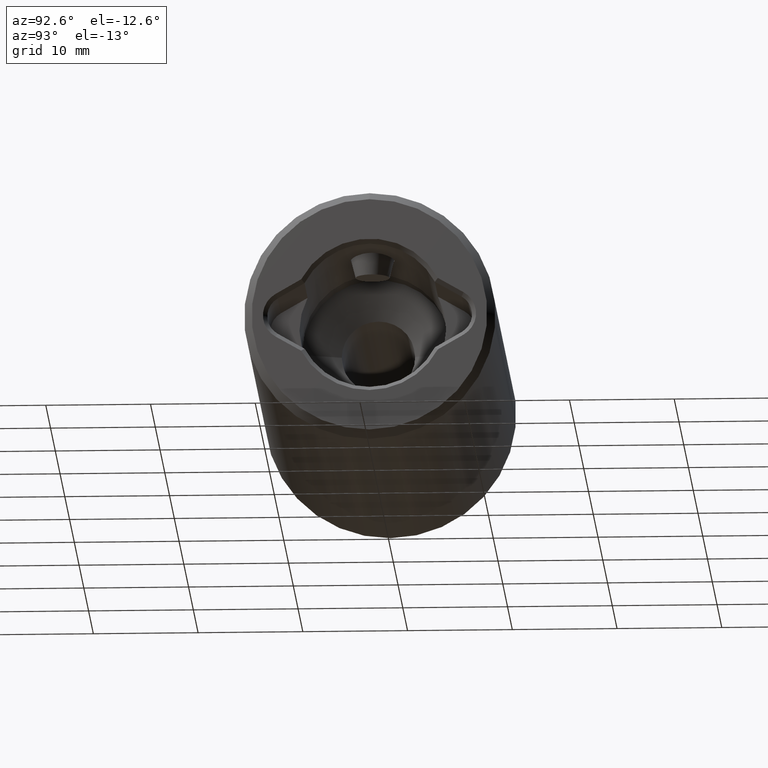
[diagram: clean part render]
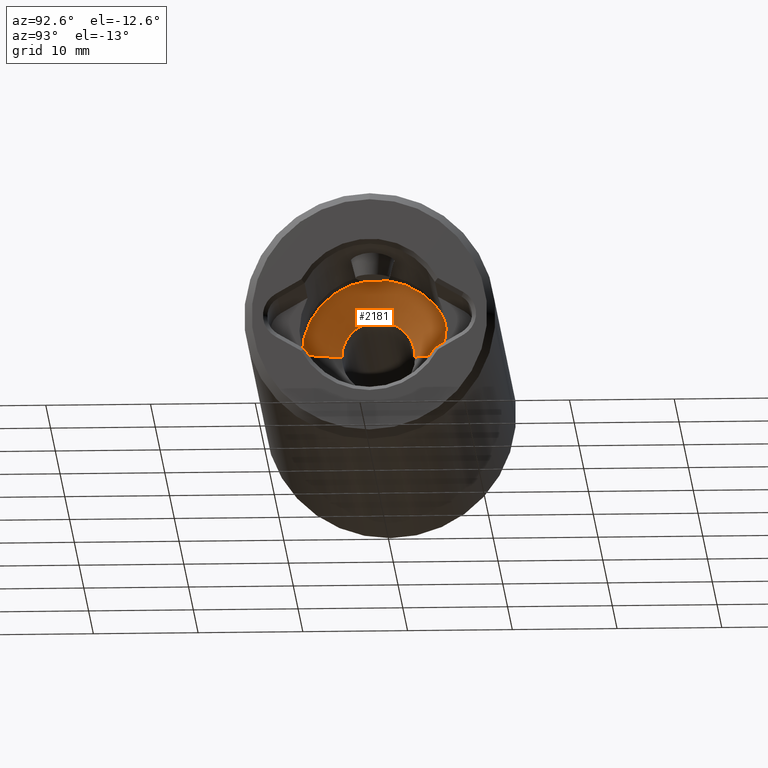
[diagram: same view with one face highlighted and labeled with its STEP entity id]
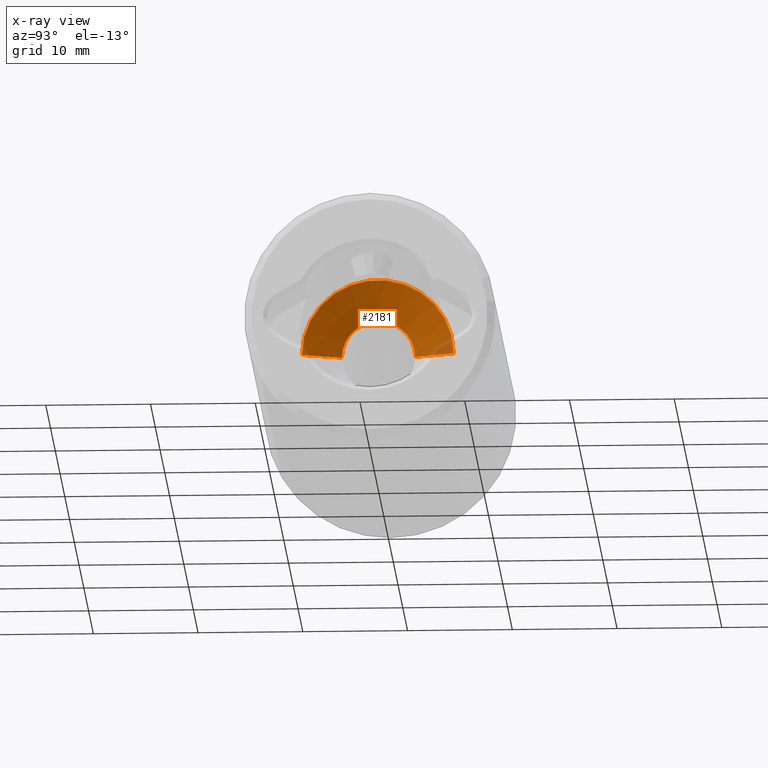
[diagram: x-ray of the same camera — body ghosted, the highlighted face saturated]
A machine part, auxiliary view. The second image highlights one B-rep face of the part: STEP entity #2181.
The next image is the same camera in x-ray: the body ghosted, the highlighted face saturated — about 5% of this face is hidden behind the body in this view.
In plain terms, the highlighted conical surface has half-angle 70 deg.
Its self-contained STEP definition (entity closure, byte-faithful):
#38 = EDGE_CURVE ( 'NONE', #66, #3526, #2952, .T. ) ;
#66 = VERTEX_POINT ( 'NONE', #887 ) ;
#77 = AXIS2_PLACEMENT_3D ( 'NONE', #3447, #1484, #3767 ) ;
#135 = CARTESIAN_POINT ( 'NONE',  ( 8.878689293818308100E-016, -7.250000000000000900, 17.50000000000000000 ) ) ;
#318 = DIRECTION ( 'NONE',  ( 0.0000000000000000000, 1.000000000000000000, 0.0000000000000000000 ) ) ;
#320 = EDGE_CURVE ( 'NONE', #1668, #455, #3971, .T. ) ;
#455 = VERTEX_POINT ( 'NONE', #135 ) ;
#466 = VERTEX_POINT ( 'NONE', #3518 ) ;
#562 = ORIENTED_EDGE ( 'NONE', *, *, #38, .F. ) ;
#575 = AXIS2_PLACEMENT_3D ( 'NONE', #1307, #1969, #318 ) ;
#812 = EDGE_LOOP ( 'NONE', ( #2291, #1006, #562, #1224, #3225 ) ) ;
#887 = CARTESIAN_POINT ( 'NONE',  ( 0.0000000000000000000, 3.499999999999997800, 18.86488837849823600 ) ) ;
#955 = DIRECTION ( 'NONE',  ( 0.0000000000000000000, 0.9396926207859104300, -0.3420201433256630500 ) ) ;
#1006 = ORIENTED_EDGE ( 'NONE', *, *, #4036, .F. ) ;
#1040 = CARTESIAN_POINT ( 'NONE',  ( 3.500000000000000000, 0.0000000000000000000, 18.86488837849823600 ) ) ;
#1057 = DIRECTION ( 'NONE',  ( 0.0000000000000000000, -4.148317104405457400E-017, -1.000000000000000000 ) ) ;
#1160 = DIRECTION ( 'NONE',  ( 1.150791560227852700E-016, -0.9396926207859104300, -0.3420201433256629400 ) ) ;
#1224 = ORIENTED_EDGE ( 'NONE', *, *, #3394, .T. ) ;
#1307 = CARTESIAN_POINT ( 'NONE',  ( 0.0000000000000000000, -2.136345753203781900E-015, 17.50000000000000000 ) ) ;
#1329 = AXIS2_PLACEMENT_3D ( 'NONE', #1914, #4199, #2239 ) ;
#1484 = DIRECTION ( 'NONE',  ( 0.0000000000000000000, -4.148317104405457400E-017, -1.000000000000000000 ) ) ;
#1523 = EDGE_CURVE ( 'NONE', #455, #466, #4064, .T. ) ;
#1588 = CARTESIAN_POINT ( 'NONE',  ( 0.0000000000000000000, 7.249999999999998200, 17.50000000000000000 ) ) ;
#1668 = VERTEX_POINT ( 'NONE', #2328 ) ;
#1914 = CARTESIAN_POINT ( 'NONE',  ( 0.0000000000000000000, -2.136345753203781900E-015, 17.50000000000000000 ) ) ;
#1924 = FACE_OUTER_BOUND ( 'NONE', #812, .T. ) ;
#1969 = DIRECTION ( 'NONE',  ( 0.0000000000000000000, -4.148317104405457400E-017, -1.000000000000000000 ) ) ;
#2181 = ADVANCED_FACE ( 'NONE', ( #1924 ), #2717, .F. ) ;
#2239 = DIRECTION ( 'NONE',  ( 0.0000000000000000000, -1.000000000000000000, 0.0000000000000000000 ) ) ;
#2291 = ORIENTED_EDGE ( 'NONE', *, *, #320, .F. ) ;
#2328 = CARTESIAN_POINT ( 'NONE',  ( 6.582476545417023100E-016, -3.500000000000002200, 18.86488837849823600 ) ) ;
#2340 = VECTOR ( 'NONE', #955, 1000.000000000000200 ) ;
#2717 = CONICAL_SURFACE ( 'NONE', #575, 7.250000000000000000, 1.221730476396036800 ) ;
#2952 = CIRCLE ( 'NONE', #4022, 3.500000000000000000 ) ;
#3004 = CARTESIAN_POINT ( 'NONE',  ( 0.0000000000000000000, -2.079725855142497400E-015, 18.86488837849823600 ) ) ;
#3105 = CARTESIAN_POINT ( 'NONE',  ( 8.878689293818310100E-016, -7.250000000000001800, 17.50000000000000000 ) ) ;
#3225 = ORIENTED_EDGE ( 'NONE', *, *, #1523, .F. ) ;
#3329 = DIRECTION ( 'NONE',  ( 0.0000000000000000000, 1.000000000000000000, 0.0000000000000000000 ) ) ;
#3394 = EDGE_CURVE ( 'NONE', #66, #466, #4158, .T. ) ;
#3447 = CARTESIAN_POINT ( 'NONE',  ( 0.0000000000000000000, -2.079725855142497400E-015, 18.86488837849823600 ) ) ;
#3518 = CARTESIAN_POINT ( 'NONE',  ( 0.0000000000000000000, 7.249999999999999100, 17.50000000000000000 ) ) ;
#3526 = VERTEX_POINT ( 'NONE', #1040 ) ;
#3747 = CIRCLE ( 'NONE', #77, 3.500000000000000000 ) ;
#3767 = DIRECTION ( 'NONE',  ( 0.0000000000000000000, 1.000000000000000000, 0.0000000000000000000 ) ) ;
#3971 = LINE ( 'NONE', #3105, #4073 ) ;
#4022 = AXIS2_PLACEMENT_3D ( 'NONE', #3004, #1057, #3329 ) ;
#4036 = EDGE_CURVE ( 'NONE', #3526, #1668, #3747, .T. ) ;
#4064 = CIRCLE ( 'NONE', #1329, 7.250000000000000000 ) ;
#4073 = VECTOR ( 'NONE', #1160, 1000.000000000000200 ) ;
#4158 = LINE ( 'NONE', #1588, #2340 ) ;
#4199 = DIRECTION ( 'NONE',  ( -0.0000000000000000000, 4.148317104405457400E-017, 1.000000000000000000 ) ) ;